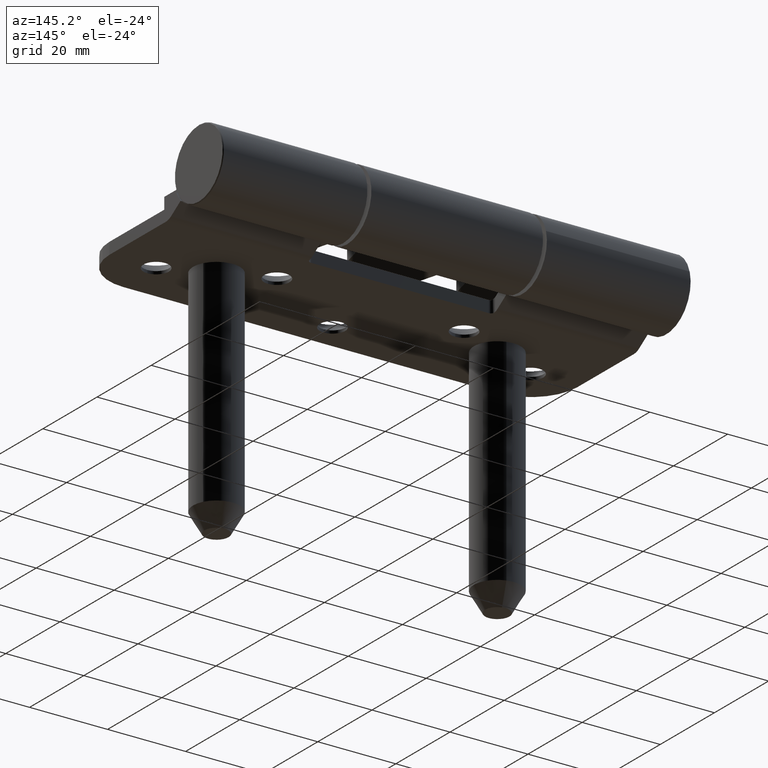
[diagram: clean part render]
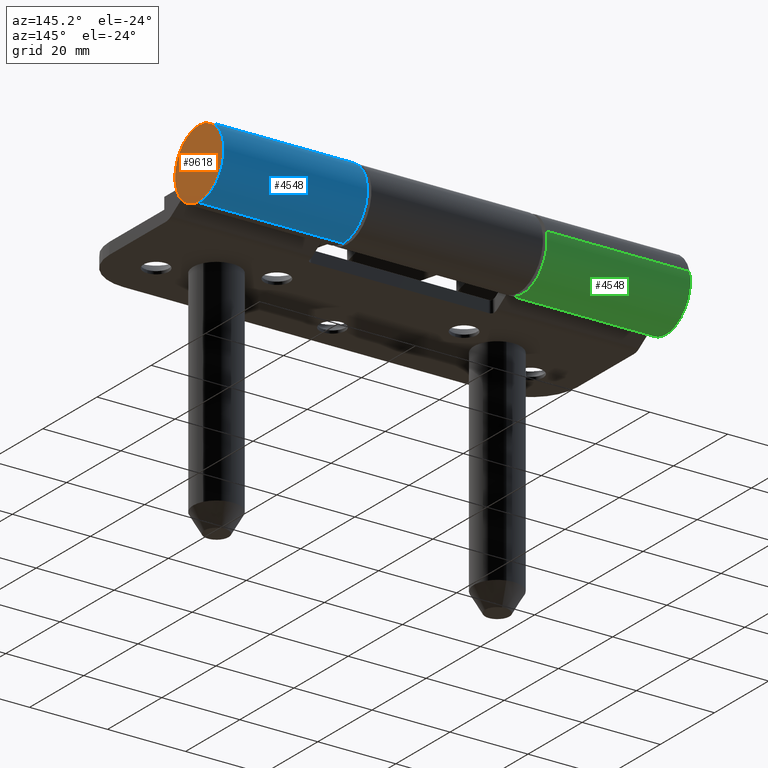
[diagram: same view with three faces highlighted in distinct colors, each labeled with its STEP entity id]
A machine part, auxiliary view with three faces highlighted in distinct colors.
Their STEP definitions:

[orange] entity #9618 — the highlighted planar face has unit normal (-1, 0, -0).
#25 = DIRECTION ( 'NONE',  ( -1.000000000000000000, 3.021674783201199700E-032, 6.291059499726930600E-032 ) ) ;
#928 = VERTEX_POINT ( 'NONE', #14652 ) ;
#2396 = EDGE_CURVE ( 'NONE', #928, #14655, #8870, .T. ) ;
#2409 = ORIENTED_EDGE ( 'NONE', *, *, #12698, .F. ) ;
#4213 = PLANE ( 'NONE',  #17548 ) ;
#4253 = AXIS2_PLACEMENT_3D ( 'NONE', #10889, #25, #9400 ) ;
#4932 = ORIENTED_EDGE ( 'NONE', *, *, #2396, .F. ) ;
#5152 = AXIS2_PLACEMENT_3D ( 'NONE', #10235, #11661, #17180 ) ;
#6104 = FACE_OUTER_BOUND ( 'NONE', #17177, .T. ) ;
#7217 = DIRECTION ( 'NONE',  ( -1.000000000000000000, 3.021674783201199700E-032, -4.268031240114619700E-032 ) ) ;
#8659 = DIRECTION ( 'NONE',  ( -4.268031240114619700E-032, 0.0000000000000000000, 1.000000000000000000 ) ) ;
#8870 = CIRCLE ( 'NONE', #4253, 8.800000000000009600 ) ;
#9400 = DIRECTION ( 'NONE',  ( 0.0000000000000000000, 0.0000000000000000000, 1.000000000000000000 ) ) ;
#9618 = ADVANCED_FACE ( 'NONE', ( #6104 ), #4213, .F. ) ;
#10235 = CARTESIAN_POINT ( 'NONE',  ( 37.00000000000000000, -2.022226441606597600E-030, 1.925929944387235900E-030 ) ) ;
#10889 = CARTESIAN_POINT ( 'NONE',  ( 37.00000000000000000, -2.022226441606597600E-030, 1.925929944387235900E-030 ) ) ;
#11423 = CARTESIAN_POINT ( 'NONE',  ( 37.00000000000000000, -2.022226441606597600E-030, 8.800000000000009600 ) ) ;
#11661 = DIRECTION ( 'NONE',  ( -1.000000000000000000, 3.021674783201199700E-032, 6.291059499726930600E-032 ) ) ;
#12430 = CIRCLE ( 'NONE', #5152, 8.800000000000009600 ) ;
#12698 = EDGE_CURVE ( 'NONE', #14655, #928, #12430, .T. ) ;
#14652 = CARTESIAN_POINT ( 'NONE',  ( 37.00000000000000000, 1.089935651241142200E-015, -8.799999999999998900 ) ) ;
#14655 = VERTEX_POINT ( 'NONE', #11423 ) ;
#15512 = CARTESIAN_POINT ( 'NONE',  ( 37.00000000000000000, 8.799999999999998900, 1.941683782375598100E-016 ) ) ;
#17177 = EDGE_LOOP ( 'NONE', ( #2409, #4932 ) ) ;
#17180 = DIRECTION ( 'NONE',  ( 0.0000000000000000000, 0.0000000000000000000, 1.000000000000000000 ) ) ;
#17548 = AXIS2_PLACEMENT_3D ( 'NONE', #15512, #7217, #8659 ) ;

[blue] entity #4548 — the highlighted cylindrical surface (partial cylindrical patch) has radius 9 mm, axis along (-1, 0, 0).
#10 = LINE ( 'NONE', #12622, #6432 ) ;
#178 = VERTEX_POINT ( 'NONE', #5547 ) ;
#573 = DIRECTION ( 'NONE',  ( -1.000000000000000000, 3.021674783201199700E-032, 6.291059499726930600E-032 ) ) ;
#654 = CARTESIAN_POINT ( 'NONE',  ( 36.79999999999999700, -9.629649721936179300E-031, 9.000000000000007100 ) ) ;
#697 = AXIS2_PLACEMENT_3D ( 'NONE', #12990, #10415, #8796 ) ;
#1333 = EDGE_CURVE ( 'NONE', #15687, #12715, #17479, .T. ) ;
#2026 = CARTESIAN_POINT ( 'NONE',  ( 36.79999999999999700, 1.102182119232617900E-015, -8.999999999999998200 ) ) ;
#2556 = DIRECTION ( 'NONE',  ( 0.0000000000000000000, 0.0000000000000000000, 1.000000000000000000 ) ) ;
#3651 = CIRCLE ( 'NONE', #10997, 9.000000000000008900 ) ;
#4443 = CARTESIAN_POINT ( 'NONE',  ( 0.0000000000000000000, 0.0000000000000000000, 0.0000000000000000000 ) ) ;
#4548 = ADVANCED_FACE ( 'NONE', ( #6415 ), #4680, .T. ) ;
#4680 = CYLINDRICAL_SURFACE ( 'NONE', #4952, 9.000000000000007100 ) ;
#4952 = AXIS2_PLACEMENT_3D ( 'NONE', #10814, #8224, #2556 ) ;
#5308 = CARTESIAN_POINT ( 'NONE',  ( 25.50000000000000400, 1.102182119232618900E-015, -9.000000000000007100 ) ) ;
#5547 = CARTESIAN_POINT ( 'NONE',  ( -5.777789833161701400E-031, 1.102182119232617900E-015, -9.000000000000000000 ) ) ;
#5771 = VECTOR ( 'NONE', #8079, 1000.000000000000000 ) ;
#5940 = EDGE_CURVE ( 'NONE', #12715, #178, #15460, .T. ) ;
#6415 = FACE_OUTER_BOUND ( 'NONE', #8670, .T. ) ;
#6432 = VECTOR ( 'NONE', #11307, 1000.000000000000000 ) ;
#7218 = DIRECTION ( 'NONE',  ( -4.268031240114620300E-032, 0.0000000000000000000, 1.000000000000000000 ) ) ;
#8079 = DIRECTION ( 'NONE',  ( -1.000000000000000000, 3.021674783201199700E-032, 6.291059499726930600E-032 ) ) ;
#8224 = DIRECTION ( 'NONE',  ( -1.000000000000000000, 3.021674783201199700E-032, 6.291059499726930600E-032 ) ) ;
#8670 = EDGE_LOOP ( 'NONE', ( #11483, #10401, #11868, #13421 ) ) ;
#8796 = DIRECTION ( 'NONE',  ( 0.0000000000000000000, 0.0000000000000000000, 1.000000000000000000 ) ) ;
#10401 = ORIENTED_EDGE ( 'NONE', *, *, #5940, .T. ) ;
#10415 = DIRECTION ( 'NONE',  ( -1.000000000000000000, 3.021674783201199700E-032, 6.291059499726930600E-032 ) ) ;
#10814 = CARTESIAN_POINT ( 'NONE',  ( 25.50000000000000400, -9.629649721936179300E-032, 0.0000000000000000000 ) ) ;
#10867 = EDGE_CURVE ( 'NONE', #16171, #178, #3651, .T. ) ;
#10997 = AXIS2_PLACEMENT_3D ( 'NONE', #4443, #573, #7218 ) ;
#11307 = DIRECTION ( 'NONE',  ( -1.000000000000000000, 3.021674783201199700E-032, 6.291059499726930600E-032 ) ) ;
#11483 = ORIENTED_EDGE ( 'NONE', *, *, #1333, .T. ) ;
#11868 = ORIENTED_EDGE ( 'NONE', *, *, #10867, .F. ) ;
#11877 = EDGE_CURVE ( 'NONE', #15687, #16171, #10, .T. ) ;
#12622 = CARTESIAN_POINT ( 'NONE',  ( 25.50000000000000400, -9.629649721936179300E-032, 9.000000000000007100 ) ) ;
#12715 = VERTEX_POINT ( 'NONE', #2026 ) ;
#12990 = CARTESIAN_POINT ( 'NONE',  ( 36.79999999999999700, -9.629649721936179300E-031, -3.851859888774471700E-031 ) ) ;
#13421 = ORIENTED_EDGE ( 'NONE', *, *, #11877, .F. ) ;
#15460 = LINE ( 'NONE', #5308, #5771 ) ;
#15687 = VERTEX_POINT ( 'NONE', #654 ) ;
#16171 = VERTEX_POINT ( 'NONE', #16702 ) ;
#16702 = CARTESIAN_POINT ( 'NONE',  ( -3.841228116103161900E-031, 0.0000000000000000000, 9.000000000000008900 ) ) ;
#17479 = CIRCLE ( 'NONE', #697, 9.000000000000007100 ) ;

[green] entity #4548 — the highlighted cylindrical surface (partial cylindrical patch) has radius 9 mm, axis along (1, -0, 0).
#10 = LINE ( 'NONE', #12622, #6432 ) ;
#178 = VERTEX_POINT ( 'NONE', #5547 ) ;
#573 = DIRECTION ( 'NONE',  ( -1.000000000000000000, 3.021674783201199700E-032, 6.291059499726930600E-032 ) ) ;
#654 = CARTESIAN_POINT ( 'NONE',  ( 36.79999999999999700, -9.629649721936179300E-031, 9.000000000000007100 ) ) ;
#697 = AXIS2_PLACEMENT_3D ( 'NONE', #12990, #10415, #8796 ) ;
#1333 = EDGE_CURVE ( 'NONE', #15687, #12715, #17479, .T. ) ;
#2026 = CARTESIAN_POINT ( 'NONE',  ( 36.79999999999999700, 1.102182119232617900E-015, -8.999999999999998200 ) ) ;
#2556 = DIRECTION ( 'NONE',  ( 0.0000000000000000000, 0.0000000000000000000, 1.000000000000000000 ) ) ;
#3651 = CIRCLE ( 'NONE', #10997, 9.000000000000008900 ) ;
#4443 = CARTESIAN_POINT ( 'NONE',  ( 0.0000000000000000000, 0.0000000000000000000, 0.0000000000000000000 ) ) ;
#4548 = ADVANCED_FACE ( 'NONE', ( #6415 ), #4680, .T. ) ;
#4680 = CYLINDRICAL_SURFACE ( 'NONE', #4952, 9.000000000000007100 ) ;
#4952 = AXIS2_PLACEMENT_3D ( 'NONE', #10814, #8224, #2556 ) ;
#5308 = CARTESIAN_POINT ( 'NONE',  ( 25.50000000000000400, 1.102182119232618900E-015, -9.000000000000007100 ) ) ;
#5547 = CARTESIAN_POINT ( 'NONE',  ( -5.777789833161701400E-031, 1.102182119232617900E-015, -9.000000000000000000 ) ) ;
#5771 = VECTOR ( 'NONE', #8079, 1000.000000000000000 ) ;
#5940 = EDGE_CURVE ( 'NONE', #12715, #178, #15460, .T. ) ;
#6415 = FACE_OUTER_BOUND ( 'NONE', #8670, .T. ) ;
#6432 = VECTOR ( 'NONE', #11307, 1000.000000000000000 ) ;
#7218 = DIRECTION ( 'NONE',  ( -4.268031240114620300E-032, 0.0000000000000000000, 1.000000000000000000 ) ) ;
#8079 = DIRECTION ( 'NONE',  ( -1.000000000000000000, 3.021674783201199700E-032, 6.291059499726930600E-032 ) ) ;
#8224 = DIRECTION ( 'NONE',  ( -1.000000000000000000, 3.021674783201199700E-032, 6.291059499726930600E-032 ) ) ;
#8670 = EDGE_LOOP ( 'NONE', ( #11483, #10401, #11868, #13421 ) ) ;
#8796 = DIRECTION ( 'NONE',  ( 0.0000000000000000000, 0.0000000000000000000, 1.000000000000000000 ) ) ;
#10401 = ORIENTED_EDGE ( 'NONE', *, *, #5940, .T. ) ;
#10415 = DIRECTION ( 'NONE',  ( -1.000000000000000000, 3.021674783201199700E-032, 6.291059499726930600E-032 ) ) ;
#10814 = CARTESIAN_POINT ( 'NONE',  ( 25.50000000000000400, -9.629649721936179300E-032, 0.0000000000000000000 ) ) ;
#10867 = EDGE_CURVE ( 'NONE', #16171, #178, #3651, .T. ) ;
#10997 = AXIS2_PLACEMENT_3D ( 'NONE', #4443, #573, #7218 ) ;
#11307 = DIRECTION ( 'NONE',  ( -1.000000000000000000, 3.021674783201199700E-032, 6.291059499726930600E-032 ) ) ;
#11483 = ORIENTED_EDGE ( 'NONE', *, *, #1333, .T. ) ;
#11868 = ORIENTED_EDGE ( 'NONE', *, *, #10867, .F. ) ;
#11877 = EDGE_CURVE ( 'NONE', #15687, #16171, #10, .T. ) ;
#12622 = CARTESIAN_POINT ( 'NONE',  ( 25.50000000000000400, -9.629649721936179300E-032, 9.000000000000007100 ) ) ;
#12715 = VERTEX_POINT ( 'NONE', #2026 ) ;
#12990 = CARTESIAN_POINT ( 'NONE',  ( 36.79999999999999700, -9.629649721936179300E-031, -3.851859888774471700E-031 ) ) ;
#13421 = ORIENTED_EDGE ( 'NONE', *, *, #11877, .F. ) ;
#15460 = LINE ( 'NONE', #5308, #5771 ) ;
#15687 = VERTEX_POINT ( 'NONE', #654 ) ;
#16171 = VERTEX_POINT ( 'NONE', #16702 ) ;
#16702 = CARTESIAN_POINT ( 'NONE',  ( -3.841228116103161900E-031, 0.0000000000000000000, 9.000000000000008900 ) ) ;
#17479 = CIRCLE ( 'NONE', #697, 9.000000000000007100 ) ;